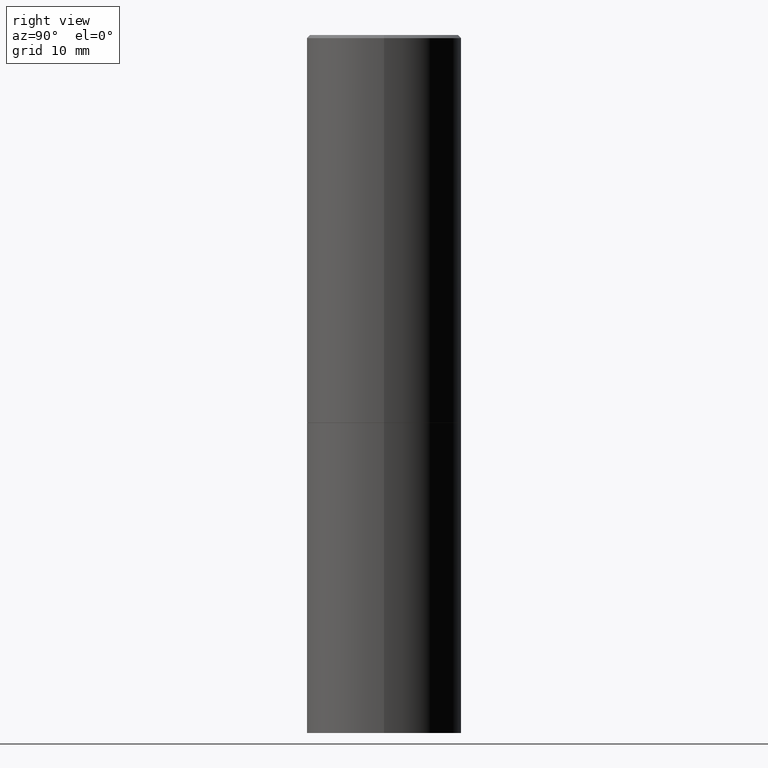
[diagram: clean part render]
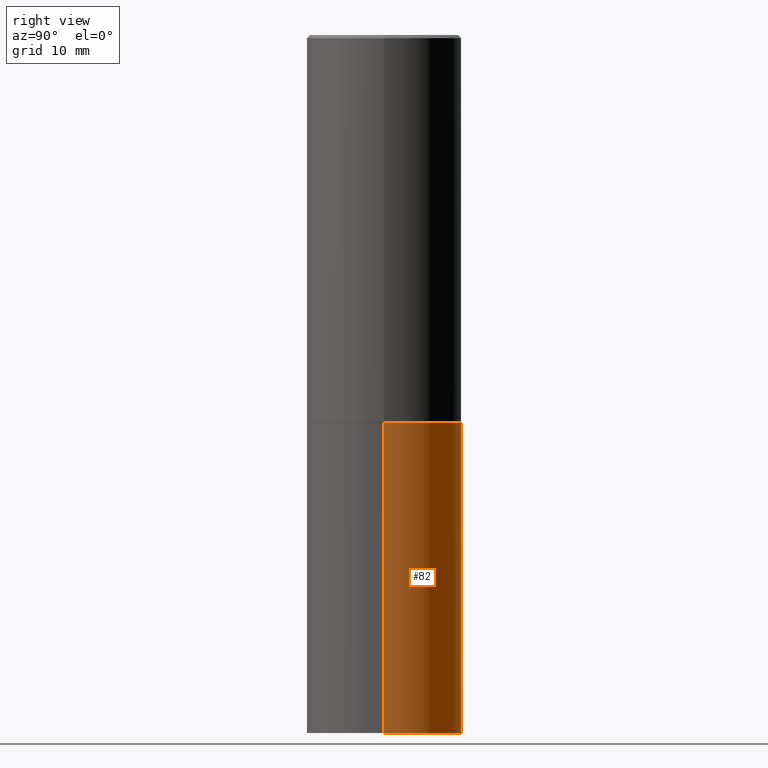
[diagram: same view with one face highlighted and labeled with its STEP entity id]
A machine part, right view. The second image highlights one B-rep face of the part: STEP entity #82.
In plain terms, the highlighted cylindrical surface (partial cylindrical patch) has radius 12.7 mm, axis along (-0, 0, 1).
Its self-contained STEP definition (entity closure, byte-faithful):
#11 = EDGE_LOOP ( 'NONE', ( #346, #80, #342, #333 ) ) ;
#33 = EDGE_CURVE ( 'NONE', #100, #92, #261, .T. ) ;
#45 = AXIS2_PLACEMENT_3D ( 'NONE', #269, #360, #154 ) ;
#71 = CIRCLE ( 'NONE', #45, 0.5000000000000000000 ) ;
#80 = ORIENTED_EDGE ( 'NONE', *, *, #33, .T. ) ;
#82 = ADVANCED_FACE ( 'NONE', ( #250 ), #302, .T. ) ;
#91 = DIRECTION ( 'NONE',  ( 1.000000000000000000, -6.982962677686269077E-15, 0.000000000000000000 ) ) ;
#92 = VERTEX_POINT ( 'NONE', #209 ) ;
#100 = VERTEX_POINT ( 'NONE', #258 ) ;
#112 = CARTESIAN_POINT ( 'NONE',  ( 0.5000000000000000000, -3.491481338843133355E-15, 2.438088387897967896E-29 ) ) ;
#113 = DIRECTION ( 'NONE',  ( -2.445468806185136877E-29, 3.491481338843145188E-15, 1.000000000000000000 ) ) ;
#123 = CARTESIAN_POINT ( 'NONE',  ( 6.113672015462842613E-29, -8.728703347107864943E-15, -2.500000000000000000 ) ) ;
#132 = CIRCLE ( 'NONE', #344, 0.5000000000000000000 ) ;
#140 = EDGE_CURVE ( 'NONE', #323, #100, #71, .T. ) ;
#154 = DIRECTION ( 'NONE',  ( 1.000000000000000000, -6.982962677686266711E-15, 0.000000000000000000 ) ) ;
#177 = CARTESIAN_POINT ( 'NONE',  ( -0.5000000000000000000, 3.552713678800500929E-15, -2.459467545127452891E-29 ) ) ;
#181 = DIRECTION ( 'NONE',  ( -2.445468806185136597E-29, 3.491481338843145583E-15, 1.000000000000000000 ) ) ;
#182 = DIRECTION ( 'NONE',  ( -2.445468806185136877E-29, 3.491481338843145188E-15, 1.000000000000000000 ) ) ;
#209 = CARTESIAN_POINT ( 'NONE',  ( -0.5000000000000000000, -8.667471007150509990E-15, -2.500000000000000000 ) ) ;
#229 = AXIS2_PLACEMENT_3D ( 'NONE', #316, #181, #293 ) ;
#231 = EDGE_CURVE ( 'NONE', #323, #279, #278, .T. ) ;
#232 = CARTESIAN_POINT ( 'NONE',  ( 0.5000000000000000000, -1.222018468595099830E-14, -2.500000000000000000 ) ) ;
#241 = DIRECTION ( 'NONE',  ( -2.445468806185136597E-29, 3.491481338843145583E-15, 1.000000000000000000 ) ) ;
#250 = FACE_OUTER_BOUND ( 'NONE', #11, .T. ) ;
#258 = CARTESIAN_POINT ( 'NONE',  ( -0.5000000000000000000, -8.667471007150509990E-15, -4.500000000000000000 ) ) ;
#261 = LINE ( 'NONE', #177, #341 ) ;
#269 = CARTESIAN_POINT ( 'NONE',  ( 1.100460962783311469E-28, -1.571166602479415690E-14, -4.500000000000000000 ) ) ;
#278 = LINE ( 'NONE', #112, #351 ) ;
#279 = VERTEX_POINT ( 'NONE', #232 ) ;
#292 = CARTESIAN_POINT ( 'NONE',  ( 0.5000000000000000000, -1.920314736363729025E-14, -4.500000000000000000 ) ) ;
#293 = DIRECTION ( 'NONE',  ( 1.000000000000000000, -6.982962677686266711E-15, 4.876176775795935793E-29 ) ) ;
#302 = CYLINDRICAL_SURFACE ( 'NONE', #229, 0.5000000000000000000 ) ;
#316 = CARTESIAN_POINT ( 'NONE',  ( 0.000000000000000000, 0.000000000000000000, 0.000000000000000000 ) ) ;
#323 = VERTEX_POINT ( 'NONE', #292 ) ;
#333 = ORIENTED_EDGE ( 'NONE', *, *, #231, .F. ) ;
#341 = VECTOR ( 'NONE', #182, 39.37007874015748143 ) ;
#342 = ORIENTED_EDGE ( 'NONE', *, *, #356, .F. ) ;
#344 = AXIS2_PLACEMENT_3D ( 'NONE', #123, #241, #91 ) ;
#346 = ORIENTED_EDGE ( 'NONE', *, *, #140, .T. ) ;
#351 = VECTOR ( 'NONE', #113, 39.37007874015748143 ) ;
#356 = EDGE_CURVE ( 'NONE', #279, #92, #132, .T. ) ;
#360 = DIRECTION ( 'NONE',  ( -2.445468806185136597E-29, 3.491481338843145583E-15, 1.000000000000000000 ) ) ;